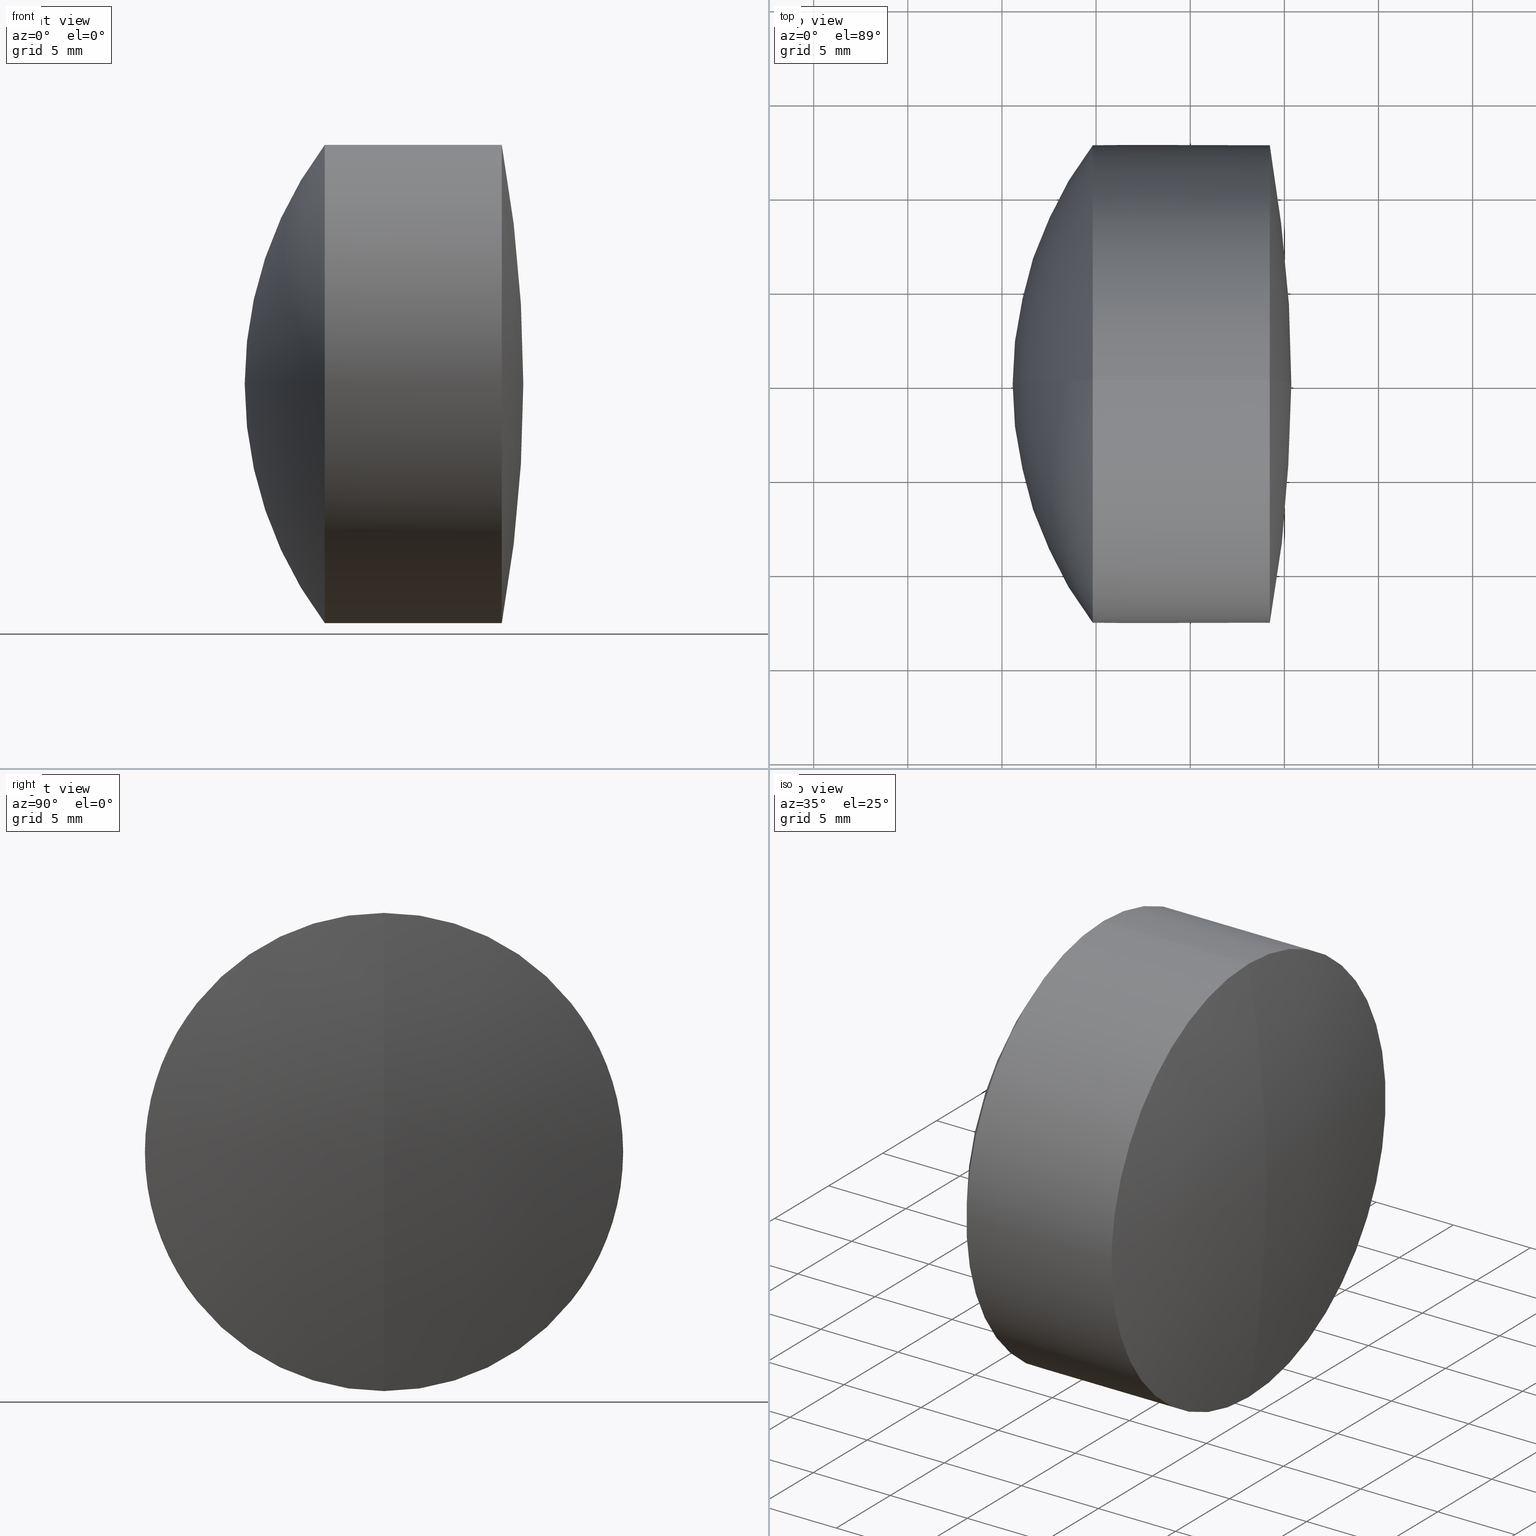
[diagram: canonical four-view strip — front | top / right | iso, engineering-drawing reading convention]
A machine part, canonical four-view strip (front | top / right | iso — engineering-drawing reading convention). The complete STEP part file that produces these views, byte-faithful:
ISO-10303-21;
HEADER;
FILE_DESCRIPTION (( 'STEP AP214' ),
    '1' );
FILE_NAME ('145158.STEP',
    '2019-06-07T03:03:15',
    ( 'user' ),
    ( '΢���й�' ),
    'SwSTEP 2.0',
    'SolidWorks 2016',
    '' );
FILE_SCHEMA (( 'AUTOMOTIVE_DESIGN' ));
ENDSEC;

DATA;
#1 = CARTESIAN_POINT ( 'NONE',  ( 16.75446555327505400, 1.555301434917138400E-015, -12.69999999999999900 ) ) ;
#2 = COLOUR_RGB ( '',1.000000000000000000, 1.000000000000000000, 1.000000000000000000 ) ;
#3 = CARTESIAN_POINT ( 'NONE',  ( -45.74976141422766300, 0.0000000000000000000, 0.0000000000000000000 ) ) ;
#4 = EDGE_CURVE ( 'NONE', #127, #321, #328, .T. ) ;
#5 = SURFACE_STYLE_USAGE ( .BOTH. , #31 ) ;
#6 = ADVANCED_FACE ( 'NONE', ( #305 ), #298, .F. ) ;
#7 = CIRCLE ( 'NONE', #189, 71.12000000000000500 ) ;
#8 = ORIENTED_EDGE ( 'NONE', *, *, #331, .T. ) ;
#9 = CARTESIAN_POINT ( 'NONE',  ( 16.75446555327505400, 0.0000000000000000000, 0.0000000000000000000 ) ) ;
#10 = DIRECTION ( 'NONE',  ( -1.000000000000000000, -0.0000000000000000000, -0.0000000000000000000 ) ) ;
#11 = ORIENTED_EDGE ( 'NONE', *, *, #61, .T. ) ;
#12 = DIRECTION ( 'NONE',  ( 0.0000000000000000000, 1.000000000000000000, -0.0000000000000000000 ) ) ;
#13 = DIRECTION ( 'NONE',  ( 0.0000000000000000000, 0.0000000000000000000, 1.000000000000000000 ) ) ;
#14 = CARTESIAN_POINT ( 'NONE',  ( 16.75446555327505400, 0.0000000000000000000, 12.69999999999999900 ) ) ;
#15 = ORIENTED_EDGE ( 'NONE', *, *, #346, .T. ) ;
#16 = PRODUCT_RELATED_PRODUCT_CATEGORY ( 'part', '', ( #334 ) ) ;
#17 = SURFACE_STYLE_USAGE ( .BOTH. , #262 ) ;
#18 = AXIS2_PLACEMENT_3D ( 'NONE', #69, #343, #165 ) ;
#19 = LINE ( 'NONE', #123, #310 ) ;
#20 = CARTESIAN_POINT ( 'NONE',  ( 8.330238585772336900, 0.0000000000000000000, 0.0000000000000000000 ) ) ;
#21 = CARTESIAN_POINT ( 'NONE',  ( 8.330238585772336900, 0.0000000000000000000, 0.0000000000000000000 ) ) ;
#22 = EDGE_LOOP ( 'NONE', ( #15, #11, #153, #252 ) ) ;
#23 = ORIENTED_EDGE ( 'NONE', *, *, #161, .T. ) ;
#24 = AXIS2_PLACEMENT_3D ( 'NONE', #146, #90, #228 ) ;
#25 = CARTESIAN_POINT ( 'NONE',  ( -0.5519199926577972300, 0.0000000000000000000, 0.0000000000000000000 ) ) ;
#26 = SPHERICAL_SURFACE ( 'NONE', #38, 15.24000000000000000 ) ;
#27 = DIRECTION ( 'NONE',  ( 0.0000000000000000000, -1.224646799147353200E-016, 1.000000000000000000 ) ) ;
#28 = EDGE_CURVE ( 'NONE', #142, #222, #7, .T. ) ;
#29 = EDGE_LOOP ( 'NONE', ( #129, #217, #58 ) ) ;
#30 = ADVANCED_FACE ( 'NONE', ( #172 ), #181, .T. ) ;
#31 = SURFACE_SIDE_STYLE ('',( #139 ) ) ;
#32 = FILL_AREA_STYLE_COLOUR ( '', #122 ) ;
#33 = EDGE_LOOP ( 'NONE', ( #171, #251, #112 ) ) ;
#34 = FACE_OUTER_BOUND ( 'NONE', #197, .T. ) ;
#35 = DIRECTION ( 'NONE',  ( -1.000000000000000000, -0.0000000000000000000, -0.0000000000000000000 ) ) ;
#36 = EDGE_CURVE ( 'NONE', #142, #306, #312, .T. ) ;
#37 = CARTESIAN_POINT ( 'NONE',  ( -45.74976141422766300, 0.0000000000000000000, 0.0000000000000000000 ) ) ;
#38 = AXIS2_PLACEMENT_3D ( 'NONE', #309, #93, #85 ) ;
#39 = DIRECTION ( 'NONE',  ( -1.000000000000000000, -0.0000000000000000000, -0.0000000000000000000 ) ) ;
#40 = CARTESIAN_POINT ( 'NONE',  ( 31.66023858577234100, 0.0000000000000000000, -4.336808766610423000E-016 ) ) ;
#41 = ORIENTED_EDGE ( 'NONE', *, *, #54, .F. ) ;
#42 = ORIENTED_EDGE ( 'NONE', *, *, #203, .F. ) ;
#43 = ORIENTED_EDGE ( 'NONE', *, *, #87, .T. ) ;
#44 = SPHERICAL_SURFACE ( 'NONE', #24, 71.12000000000000500 ) ;
#45 = CARTESIAN_POINT ( 'NONE',  ( 16.75446555327505400, 0.0000000000000000000, 0.0000000000000000000 ) ) ;
#46 = PRODUCT_DEFINITION_CONTEXT ( 'detailed design', #344, 'design' ) ;
#47 = DIRECTION ( 'NONE',  ( -0.0000000000000000000, 1.000000000000000000, 1.224646799147353200E-016 ) ) ;
#48 =( GEOMETRIC_REPRESENTATION_CONTEXT ( 3 ) GLOBAL_UNCERTAINTY_ASSIGNED_CONTEXT ( ( #221 ) ) GLOBAL_UNIT_ASSIGNED_CONTEXT ( ( #134, #114, #285 ) ) REPRESENTATION_CONTEXT ( 'NONE', 'WORKASPACE' ) );
#49 = DIRECTION ( 'NONE',  ( 0.0000000000000000000, 0.0000000000000000000, -1.000000000000000000 ) ) ;
#50 = CIRCLE ( 'NONE', #214, 12.69999999999999800 ) ;
#51 = DIRECTION ( 'NONE',  ( -1.000000000000000000, -0.0000000000000000000, -0.0000000000000000000 ) ) ;
#52 = DIRECTION ( 'NONE',  ( 0.0000000000000000000, 1.000000000000000000, 0.0000000000000000000 ) ) ;
#53 =( LENGTH_UNIT ( ) NAMED_UNIT ( * ) SI_UNIT ( .MILLI., .METRE. ) );
#54 = EDGE_CURVE ( 'NONE', #175, #178, #88, .T. ) ;
#55 = ORIENTED_EDGE ( 'NONE', *, *, #340, .T. ) ;
#56 = CIRCLE ( 'NONE', #213, 15.24000000000000000 ) ;
#57 = ORIENTED_EDGE ( 'NONE', *, *, #303, .F. ) ;
#58 = ORIENTED_EDGE ( 'NONE', *, *, #103, .F. ) ;
#59 = SPHERICAL_SURFACE ( 'NONE', #170, 21.09000000000000000 ) ;
#60 = CARTESIAN_POINT ( 'NONE',  ( 8.330238585772336900, 0.0000000000000000000, 0.0000000000000000000 ) ) ;
#61 = EDGE_CURVE ( 'NONE', #178, #293, #342, .T. ) ;
#62 = DIRECTION ( 'NONE',  ( 0.0000000000000000000, -1.000000000000000000, -1.224646799147353200E-016 ) ) ;
#63 = AXIS2_PLACEMENT_3D ( 'NONE', #37, #231, #141 ) ;
#64 = APPLICATION_CONTEXT ( 'automotive_design' ) ;
#65 = DIRECTION ( 'NONE',  ( -1.000000000000000000, -0.0000000000000000000, -0.0000000000000000000 ) ) ;
#66 = DIRECTION ( 'NONE',  ( 0.0000000000000000000, 0.0000000000000000000, 1.000000000000000000 ) ) ;
#67 = CIRCLE ( 'NONE', #116, 12.69999999999999900 ) ;
#68 =( NAMED_UNIT ( * ) PLANE_ANGLE_UNIT ( ) SI_UNIT ( $, .RADIAN. ) );
#69 = CARTESIAN_POINT ( 'NONE',  ( 8.330238585772336900, 0.0000000000000000000, 0.0000000000000000000 ) ) ;
#70 = MANIFOLD_SOLID_BREP ( '��ת1', #117 ) ;
#71 = ORIENTED_EDGE ( 'NONE', *, *, #180, .T. ) ;
#72 = SURFACE_STYLE_FILL_AREA ( #182 ) ;
#73 = DIRECTION ( 'NONE',  ( 0.0000000000000000000, -1.000000000000000000, 0.0000000000000000000 ) ) ;
#74 = CARTESIAN_POINT ( 'NONE',  ( -0.5519199926577972300, 0.0000000000000000000, 0.0000000000000000000 ) ) ;
#75 = AXIS2_PLACEMENT_3D ( 'NONE', #74, #184, #308 ) ;
#76 = VECTOR ( 'NONE', #51, 1000.000000000000000 ) ;
#77 = ORIENTED_EDGE ( 'NONE', *, *, #109, .F. ) ;
#78 = STYLED_ITEM ( 'NONE', ( #147 ), #263 ) ;
#79 = CARTESIAN_POINT ( 'NONE',  ( 25.37023858577233800, 0.0000000000000000000, -4.354844017767987900E-015 ) ) ;
#80 = CARTESIAN_POINT ( 'NONE',  ( 14.82283676720187200, 1.555301434917138400E-015, -12.69999999999999900 ) ) ;
#81 = CARTESIAN_POINT ( 'NONE',  ( 24.22712334066837100, 0.0000000000000000000, -12.69999999999997400 ) ) ;
#82 = EDGE_LOOP ( 'NONE', ( #77, #245, #216 ) ) ;
#83 = CIRCLE ( 'NONE', #260, 12.69999999999999900 ) ;
#84 = EDGE_LOOP ( 'NONE', ( #238, #99, #273 ) ) ;
#85 = DIRECTION ( 'NONE',  ( 0.0000000000000000000, 0.0000000000000000000, -1.000000000000000000 ) ) ;
#86 = CARTESIAN_POINT ( 'NONE',  ( 0.0000000000000000000, 0.0000000000000000000, 0.0000000000000000000 ) ) ;
#87 = EDGE_CURVE ( 'NONE', #306, #222, #50, .T. ) ;
#88 = CIRCLE ( 'NONE', #160, 15.24000000000000000 ) ;
#89 = ADVANCED_FACE ( 'NONE', ( #133 ), #255, .T. ) ;
#90 = DIRECTION ( 'NONE',  ( -0.0000000000000000000, -1.000000000000000000, -0.0000000000000000000 ) ) ;
#91 = FACE_OUTER_BOUND ( 'NONE', #205, .T. ) ;
#92 = EDGE_LOOP ( 'NONE', ( #41, #210, #279 ) ) ;
#93 = DIRECTION ( 'NONE',  ( -0.0000000000000000000, -1.000000000000000000, -0.0000000000000000000 ) ) ;
#94 = AXIS2_PLACEMENT_3D ( 'NONE', #20, #318, #193 ) ;
#95 = DIRECTION ( 'NONE',  ( 0.0000000000000000000, 0.0000000000000000000, 1.000000000000000000 ) ) ;
#96 = AXIS2_PLACEMENT_3D ( 'NONE', #229, #35, #200 ) ;
#97 = DIRECTION ( 'NONE',  ( 0.0000000000000000000, 0.0000000000000000000, -1.000000000000000000 ) ) ;
#98 =( LENGTH_UNIT ( ) NAMED_UNIT ( * ) SI_UNIT ( .MILLI., .METRE. ) );
#99 = ORIENTED_EDGE ( 'NONE', *, *, #4, .T. ) ;
#100 = VERTEX_POINT ( 'NONE', #179 ) ;
#101 = DIRECTION ( 'NONE',  ( -1.000000000000000000, -0.0000000000000000000, -0.0000000000000000000 ) ) ;
#102 = CIRCLE ( 'NONE', #96, 12.69999999999999900 ) ;
#103 = EDGE_CURVE ( 'NONE', #100, #280, #266, .T. ) ;
#104 = VERTEX_POINT ( 'NONE', #14 ) ;
#105 = EDGE_LOOP ( 'NONE', ( #302, #55, #23 ) ) ;
#106 = CARTESIAN_POINT ( 'NONE',  ( 24.22712334066836700, 0.0000000000000000000, 0.0000000000000000000 ) ) ;
#107 = SHAPE_DEFINITION_REPRESENTATION ( #242, #263 ) ;
#108 = DIRECTION ( 'NONE',  ( 0.0000000000000000000, 0.0000000000000000000, 1.000000000000000000 ) ) ;
#109 = EDGE_CURVE ( 'NONE', #293, #280, #118, .T. ) ;
#110 = AXIS2_PLACEMENT_3D ( 'NONE', #25, #274, #218 ) ;
#111 = COLOUR_RGB ( '',1.000000000000000000, 1.000000000000000000, 1.000000000000000000 ) ;
#112 = ORIENTED_EDGE ( 'NONE', *, *, #87, .F. ) ;
#113 = ADVANCED_FACE ( 'NONE', ( #194 ), #204, .T. ) ;
#114 =( NAMED_UNIT ( * ) PLANE_ANGLE_UNIT ( ) SI_UNIT ( $, .RADIAN. ) );
#115 = APPLICATION_PROTOCOL_DEFINITION ( 'draft international standard', 'automotive_design', 1998, #344 ) ;
#116 = AXIS2_PLACEMENT_3D ( 'NONE', #288, #10, #199 ) ;
#117 = CLOSED_SHELL ( 'NONE', ( #314, #30, #224, #113, #265, #89 ) ) ;
#118 = CIRCLE ( 'NONE', #282, 21.09000000000000000 ) ;
#119 =( NAMED_UNIT ( * ) PLANE_ANGLE_UNIT ( ) SI_UNIT ( $, .RADIAN. ) );
#120 = PRODUCT_CONTEXT ( 'NONE', #64, 'mechanical' ) ;
#121 = CARTESIAN_POINT ( 'NONE',  ( 31.66023858577234100, 0.0000000000000000000, -4.336808766610423000E-016 ) ) ;
#122 = COLOUR_RGB ( '',1.000000000000000000, 1.000000000000000000, 1.000000000000000000 ) ;
#123 = CARTESIAN_POINT ( 'NONE',  ( -0.8160621761658039000, 0.0000000000000000000, 12.69999999999999900 ) ) ;
#124 = EDGE_LOOP ( 'NONE', ( #271, #322, #166 ) ) ;
#125 = SURFACE_SIDE_STYLE ('',( #225 ) ) ;
#126 = CARTESIAN_POINT ( 'NONE',  ( -0.8160621761658039000, 1.555301434917138400E-015, -12.69999999999999900 ) ) ;
#127 = VERTEX_POINT ( 'NONE', #151 ) ;
#128 = CIRCLE ( 'NONE', #281, 12.69999999999999900 ) ;
#129 = ORIENTED_EDGE ( 'NONE', *, *, #240, .T. ) ;
#130 = EDGE_CURVE ( 'NONE', #175, #104, #287, .T. ) ;
#131 =( NAMED_UNIT ( * ) PLANE_ANGLE_UNIT ( ) SI_UNIT ( $, .RADIAN. ) );
#132 = PRESENTATION_LAYER_ASSIGNMENT (  '', '', ( #207 ) ) ;
#133 = FACE_OUTER_BOUND ( 'NONE', #92, .T. ) ;
#134 =( LENGTH_UNIT ( ) NAMED_UNIT ( * ) SI_UNIT ( .MILLI., .METRE. ) );
#135 = AXIS2_PLACEMENT_3D ( 'NONE', #86, #188, #248 ) ;
#136 = UNCERTAINTY_MEASURE_WITH_UNIT (LENGTH_MEASURE( 1.000000000000000100E-005 ), #98, 'distance_accuracy_value', 'NONE');
#137 = AXIS2_PLACEMENT_3D ( 'NONE', #21, #52, #338 ) ;
#138 = DIRECTION ( 'NONE',  ( -1.000000000000000000, -0.0000000000000000000, -0.0000000000000000000 ) ) ;
#139 = SURFACE_STYLE_FILL_AREA ( #223 ) ;
#140 = CARTESIAN_POINT ( 'NONE',  ( 23.57023858577233700, 0.0000000000000000000, 9.331808609502831000E-016 ) ) ;
#141 = DIRECTION ( 'NONE',  ( 0.0000000000000000000, 0.0000000000000000000, -1.000000000000000000 ) ) ;
#142 = VERTEX_POINT ( 'NONE', #79 ) ;
#143 = CIRCLE ( 'NONE', #227, 12.69999999999999800 ) ;
#144 = ADVANCED_FACE ( 'NONE', ( #211 ), #230, .T. ) ;
#145 = CYLINDRICAL_SURFACE ( 'NONE', #75, 12.69999999999999900 ) ;
#146 = CARTESIAN_POINT ( 'NONE',  ( -45.74976141422766300, 0.0000000000000000000, 0.0000000000000000000 ) ) ;
#147 = PRESENTATION_STYLE_ASSIGNMENT (( #5 ) ) ;
#148 = DIRECTION ( 'NONE',  ( 0.0000000000000000000, 0.0000000000000000000, 1.000000000000000000 ) ) ;
#149 = DIRECTION ( 'NONE',  ( 0.0000000000000000000, 0.0000000000000000000, 1.000000000000000000 ) ) ;
#150 = AXIS2_PLACEMENT_3D ( 'NONE', #276, #202, #169 ) ;
#151 = CARTESIAN_POINT ( 'NONE',  ( 23.57023858577233700, 0.0000000000000000000, -9.331808609502831000E-016 ) ) ;
#152 = MECHANICAL_DESIGN_GEOMETRIC_PRESENTATION_REPRESENTATION (  '', ( #78 ), #208 ) ;
#153 = ORIENTED_EDGE ( 'NONE', *, *, #240, .F. ) ;
#154 = UNCERTAINTY_MEASURE_WITH_UNIT (LENGTH_MEASURE( 1.000000000000000100E-005 ), #53, 'distance_accuracy_value', 'NONE');
#155 = MECHANICAL_DESIGN_GEOMETRIC_PRESENTATION_REPRESENTATION (  '', ( #207 ), #244 ) ;
#156 =( NAMED_UNIT ( * ) SI_UNIT ( $, .STERADIAN. ) SOLID_ANGLE_UNIT ( ) );
#157 = CARTESIAN_POINT ( 'NONE',  ( 8.330238585772336900, 0.0000000000000000000, 0.0000000000000000000 ) ) ;
#158 = ORIENTED_EDGE ( 'NONE', *, *, #259, .T. ) ;
#159 = CIRCLE ( 'NONE', #150, 12.69999999999999900 ) ;
#160 = AXIS2_PLACEMENT_3D ( 'NONE', #209, #47, #27 ) ;
#161 = EDGE_CURVE ( 'NONE', #226, #321, #83, .T. ) ;
#162 = CLOSED_SHELL ( 'NONE', ( #144, #335, #6, #253, #196, #283 ) ) ;
#163 = UNCERTAINTY_MEASURE_WITH_UNIT (LENGTH_MEASURE( 1.000000000000000100E-005 ), #289, 'distance_accuracy_value', 'NONE');
#164 = CARTESIAN_POINT ( 'NONE',  ( 10.57023858577233900, 0.0000000000000000000, 8.577091730398417100E-016 ) ) ;
#165 = DIRECTION ( 'NONE',  ( 0.0000000000000000000, 0.0000000000000000000, -1.000000000000000000 ) ) ;
#166 = ORIENTED_EDGE ( 'NONE', *, *, #346, .F. ) ;
#167 = EDGE_LOOP ( 'NONE', ( #286, #43, #158, #332 ) ) ;
#168 = FACE_OUTER_BOUND ( 'NONE', #105, .T. ) ;
#169 = DIRECTION ( 'NONE',  ( 0.0000000000000000000, 0.0000000000000000000, 1.000000000000000000 ) ) ;
#170 = AXIS2_PLACEMENT_3D ( 'NONE', #121, #341, #148 ) ;
#171 = ORIENTED_EDGE ( 'NONE', *, *, #36, .F. ) ;
#172 = FACE_OUTER_BOUND ( 'NONE', #22, .T. ) ;
#173 = EDGE_LOOP ( 'NONE', ( #8, #243, #57, #234 ) ) ;
#174 = DIRECTION ( 'NONE',  ( -1.000000000000000000, -0.0000000000000000000, -0.0000000000000000000 ) ) ;
#175 = VERTEX_POINT ( 'NONE', #140 ) ;
#176 = VECTOR ( 'NONE', #65, 1000.000000000000000 ) ;
#177 = AXIS2_PLACEMENT_3D ( 'NONE', #232, #301, #13 ) ;
#178 = VERTEX_POINT ( 'NONE', #1 ) ;
#179 = CARTESIAN_POINT ( 'NONE',  ( 14.82283676720187200, 0.0000000000000000000, 12.69999999999999900 ) ) ;
#180 = EDGE_CURVE ( 'NONE', #104, #100, #19, .T. ) ;
#181 = CYLINDRICAL_SURFACE ( 'NONE', #333, 12.69999999999999900 ) ;
#182 = FILL_AREA_STYLE ('',( #267 ) ) ;
#183 = DIRECTION ( 'NONE',  ( -1.000000000000000000, -0.0000000000000000000, -0.0000000000000000000 ) ) ;
#184 = DIRECTION ( 'NONE',  ( -1.000000000000000000, -0.0000000000000000000, -0.0000000000000000000 ) ) ;
#185 = ORIENTED_EDGE ( 'NONE', *, *, #61, .F. ) ;
#186 = SPHERICAL_SURFACE ( 'NONE', #137, 15.24000000000000000 ) ;
#187 = CARTESIAN_POINT ( 'NONE',  ( -0.8160621761658039000, 0.0000000000000000000, 0.0000000000000000000 ) ) ;
#188 = DIRECTION ( 'NONE',  ( 0.0000000000000000000, 0.0000000000000000000, 1.000000000000000000 ) ) ;
#189 = AXIS2_PLACEMENT_3D ( 'NONE', #3, #62, #297 ) ;
#190 = AXIS2_PLACEMENT_3D ( 'NONE', #257, #247, #219 ) ;
#191 = PRODUCT_DEFINITION_FORMATION_WITH_SPECIFIED_SOURCE ( '�κ�', '', #334, .NOT_KNOWN. ) ;
#192 = CARTESIAN_POINT ( 'NONE',  ( 16.75446555327505400, 0.0000000000000000000, 0.0000000000000000000 ) ) ;
#193 = DIRECTION ( 'NONE',  ( 0.0000000000000000000, 1.224646799147353200E-016, -1.000000000000000000 ) ) ;
#194 = FACE_OUTER_BOUND ( 'NONE', #82, .T. ) ;
#195 = AXIS2_PLACEMENT_3D ( 'NONE', #330, #73, #49 ) ;
#196 = ADVANCED_FACE ( 'NONE', ( #91 ), #239, .T. ) ;
#197 = EDGE_LOOP ( 'NONE', ( #185, #256, #71, #42 ) ) ;
#198 = FACE_OUTER_BOUND ( 'NONE', #124, .T. ) ;
#199 = DIRECTION ( 'NONE',  ( 0.0000000000000000000, 0.0000000000000000000, 1.000000000000000000 ) ) ;
#200 = DIRECTION ( 'NONE',  ( 0.0000000000000000000, 0.0000000000000000000, 1.000000000000000000 ) ) ;
#201 = CARTESIAN_POINT ( 'NONE',  ( 16.75446555327505400, -1.555301434917138400E-015, 12.69999999999999900 ) ) ;
#202 = DIRECTION ( 'NONE',  ( -1.000000000000000000, -0.0000000000000000000, -0.0000000000000000000 ) ) ;
#203 = EDGE_CURVE ( 'NONE', #293, #100, #159, .T. ) ;
#204 = SPHERICAL_SURFACE ( 'NONE', #177, 21.09000000000000000 ) ;
#205 = EDGE_LOOP ( 'NONE', ( #268, #313, #317 ) ) ;
#206 = DIRECTION ( 'NONE',  ( 0.0000000000000000000, -1.224646799147353200E-016, 1.000000000000000000 ) ) ;
#207 = STYLED_ITEM ( 'NONE', ( #299 ), #307 ) ;
#208 =( GEOMETRIC_REPRESENTATION_CONTEXT ( 3 ) GLOBAL_UNCERTAINTY_ASSIGNED_CONTEXT ( ( #154 ) ) GLOBAL_UNIT_ASSIGNED_CONTEXT ( ( #53, #131, #156 ) ) REPRESENTATION_CONTEXT ( 'NONE', 'WORKASPACE' ) );
#209 = CARTESIAN_POINT ( 'NONE',  ( 8.330238585772336900, 0.0000000000000000000, 0.0000000000000000000 ) ) ;
#210 = ORIENTED_EDGE ( 'NONE', *, *, #130, .T. ) ;
#211 = FACE_OUTER_BOUND ( 'NONE', #173, .T. ) ;
#212 = DIRECTION ( 'NONE',  ( -0.0000000000000000000, 1.000000000000000000, 1.224646799147353200E-016 ) ) ;
#213 = AXIS2_PLACEMENT_3D ( 'NONE', #60, #12, #254 ) ;
#214 = AXIS2_PLACEMENT_3D ( 'NONE', #106, #138, #95 ) ;
#215 = FACE_OUTER_BOUND ( 'NONE', #33, .T. ) ;
#216 = ORIENTED_EDGE ( 'NONE', *, *, #103, .T. ) ;
#217 = ORIENTED_EDGE ( 'NONE', *, *, #109, .T. ) ;
#218 = DIRECTION ( 'NONE',  ( 0.0000000000000000000, 0.0000000000000000000, 1.000000000000000000 ) ) ;
#219 = DIRECTION ( 'NONE',  ( 0.0000000000000000000, 0.0000000000000000000, 1.000000000000000000 ) ) ;
#220 = FILL_AREA_STYLE ('',( #300 ) ) ;
#221 = UNCERTAINTY_MEASURE_WITH_UNIT (LENGTH_MEASURE( 1.000000000000000100E-005 ), #134, 'distance_accuracy_value', 'NONE');
#222 = VERTEX_POINT ( 'NONE', #258 ) ;
#223 = FILL_AREA_STYLE ('',( #32 ) ) ;
#224 = ADVANCED_FACE ( 'NONE', ( #278 ), #59, .T. ) ;
#225 = SURFACE_STYLE_FILL_AREA ( #220 ) ;
#226 = VERTEX_POINT ( 'NONE', #249 ) ;
#227 = AXIS2_PLACEMENT_3D ( 'NONE', #291, #39, #327 ) ;
#228 = DIRECTION ( 'NONE',  ( 0.0000000000000000000, 0.0000000000000000000, -1.000000000000000000 ) ) ;
#229 = CARTESIAN_POINT ( 'NONE',  ( 14.82283676720187400, 0.0000000000000000000, 0.0000000000000000000 ) ) ;
#230 = CYLINDRICAL_SURFACE ( 'NONE', #110, 12.69999999999999900 ) ;
#231 = DIRECTION ( 'NONE',  ( -0.0000000000000000000, -1.000000000000000000, -0.0000000000000000000 ) ) ;
#232 = CARTESIAN_POINT ( 'NONE',  ( 31.66023858577234100, 0.0000000000000000000, -4.336808766610423000E-016 ) ) ;
#233 =( NAMED_UNIT ( * ) SI_UNIT ( $, .STERADIAN. ) SOLID_ANGLE_UNIT ( ) );
#234 = ORIENTED_EDGE ( 'NONE', *, *, #259, .F. ) ;
#235 = DIRECTION ( 'NONE',  ( 0.0000000000000000000, 0.0000000000000000000, 1.000000000000000000 ) ) ;
#236 = CARTESIAN_POINT ( 'NONE',  ( -0.5519199926577972300, 1.555301434917138400E-015, -12.69999999999999900 ) ) ;
#237 = DIRECTION ( 'NONE',  ( -1.000000000000000000, -0.0000000000000000000, -0.0000000000000000000 ) ) ;
#238 = ORIENTED_EDGE ( 'NONE', *, *, #340, .F. ) ;
#239 = SPHERICAL_SURFACE ( 'NONE', #63, 71.12000000000000500 ) ;
#240 = EDGE_CURVE ( 'NONE', #100, #293, #102, .T. ) ;
#241 = AXIS2_PLACEMENT_3D ( 'NONE', #264, #275, #235 ) ;
#242 = PRODUCT_DEFINITION_SHAPE ( 'NONE', 'NONE',  #284 ) ;
#243 = ORIENTED_EDGE ( 'NONE', *, *, #277, .T. ) ;
#244 =( GEOMETRIC_REPRESENTATION_CONTEXT ( 3 ) GLOBAL_UNCERTAINTY_ASSIGNED_CONTEXT ( ( #163 ) ) GLOBAL_UNIT_ASSIGNED_CONTEXT ( ( #289, #119, #315 ) ) REPRESENTATION_CONTEXT ( 'NONE', 'WORKASPACE' ) );
#245 = ORIENTED_EDGE ( 'NONE', *, *, #203, .T. ) ;
#246 = LINE ( 'NONE', #339, #176 ) ;
#247 = DIRECTION ( 'NONE',  ( -1.000000000000000000, -0.0000000000000000000, -0.0000000000000000000 ) ) ;
#248 = DIRECTION ( 'NONE',  ( 1.000000000000000000, 0.0000000000000000000, 0.0000000000000000000 ) ) ;
#249 = CARTESIAN_POINT ( 'NONE',  ( 16.75446555327505400, 0.0000000000000000000, -12.69999999999999900 ) ) ;
#250 = PRESENTATION_LAYER_ASSIGNMENT (  '', '', ( #304 ) ) ;
#251 = ORIENTED_EDGE ( 'NONE', *, *, #28, .T. ) ;
#252 = ORIENTED_EDGE ( 'NONE', *, *, #180, .F. ) ;
#253 = ADVANCED_FACE ( 'NONE', ( #168 ), #26, .F. ) ;
#254 = DIRECTION ( 'NONE',  ( 0.0000000000000000000, 0.0000000000000000000, 1.000000000000000000 ) ) ;
#255 = SPHERICAL_SURFACE ( 'NONE', #261, 15.24000000000000000 ) ;
#256 = ORIENTED_EDGE ( 'NONE', *, *, #319, .T. ) ;
#257 = CARTESIAN_POINT ( 'NONE',  ( -0.8160621761658039000, 0.0000000000000000000, 0.0000000000000000000 ) ) ;
#258 = CARTESIAN_POINT ( 'NONE',  ( 24.22712334066837100, -1.555301434917135700E-015, 12.69999999999997400 ) ) ;
#259 = EDGE_CURVE ( 'NONE', #222, #321, #246, .T. ) ;
#260 = AXIS2_PLACEMENT_3D ( 'NONE', #192, #294, #66 ) ;
#261 = AXIS2_PLACEMENT_3D ( 'NONE', #157, #325, #149 ) ;
#262 = SURFACE_SIDE_STYLE ('',( #72 ) ) ;
#263 = ADVANCED_BREP_SHAPE_REPRESENTATION ( '145158', ( #70, #307, #135 ), #48 ) ;
#264 = CARTESIAN_POINT ( 'NONE',  ( -45.74976141422766300, 0.0000000000000000000, 0.0000000000000000000 ) ) ;
#265 = ADVANCED_FACE ( 'NONE', ( #34 ), #329, .T. ) ;
#266 = CIRCLE ( 'NONE', #347, 21.09000000000000000 ) ;
#267 = FILL_AREA_STYLE_COLOUR ( '', #2 ) ;
#268 = ORIENTED_EDGE ( 'NONE', *, *, #28, .F. ) ;
#269 = PRESENTATION_LAYER_ASSIGNMENT (  '', '', ( #78 ) ) ;
#270 = MECHANICAL_DESIGN_GEOMETRIC_PRESENTATION_REPRESENTATION (  '', ( #304 ), #323 ) ;
#271 = ORIENTED_EDGE ( 'NONE', *, *, #130, .F. ) ;
#272 = CIRCLE ( 'NONE', #290, 12.69999999999999900 ) ;
#273 = ORIENTED_EDGE ( 'NONE', *, *, #303, .T. ) ;
#274 = DIRECTION ( 'NONE',  ( -1.000000000000000000, -0.0000000000000000000, -0.0000000000000000000 ) ) ;
#275 = DIRECTION ( 'NONE',  ( 0.0000000000000000000, 1.000000000000000000, -0.0000000000000000000 ) ) ;
#276 = CARTESIAN_POINT ( 'NONE',  ( 14.82283676720187400, 0.0000000000000000000, 0.0000000000000000000 ) ) ;
#277 = EDGE_CURVE ( 'NONE', #306, #226, #316, .T. ) ;
#278 = FACE_OUTER_BOUND ( 'NONE', #29, .T. ) ;
#279 = ORIENTED_EDGE ( 'NONE', *, *, #319, .F. ) ;
#280 = VERTEX_POINT ( 'NONE', #164 ) ;
#281 = AXIS2_PLACEMENT_3D ( 'NONE', #45, #237, #108 ) ;
#282 = AXIS2_PLACEMENT_3D ( 'NONE', #40, #212, #206 ) ;
#283 = ADVANCED_FACE ( 'NONE', ( #337 ), #145, .T. ) ;
#284 = PRODUCT_DEFINITION ( 'δ֪', '', #191, #46 ) ;
#285 =( NAMED_UNIT ( * ) SI_UNIT ( $, .STERADIAN. ) SOLID_ANGLE_UNIT ( ) );
#286 = ORIENTED_EDGE ( 'NONE', *, *, #277, .F. ) ;
#287 = CIRCLE ( 'NONE', #195, 15.24000000000000000 ) ;
#288 = CARTESIAN_POINT ( 'NONE',  ( 16.75446555327505400, 0.0000000000000000000, 0.0000000000000000000 ) ) ;
#289 =( LENGTH_UNIT ( ) NAMED_UNIT ( * ) SI_UNIT ( .MILLI., .METRE. ) );
#290 = AXIS2_PLACEMENT_3D ( 'NONE', #9, #174, #336 ) ;
#291 = CARTESIAN_POINT ( 'NONE',  ( 24.22712334066836700, 0.0000000000000000000, 0.0000000000000000000 ) ) ;
#292 = DIRECTION ( 'NONE',  ( -1.000000000000000000, -0.0000000000000000000, -0.0000000000000000000 ) ) ;
#293 = VERTEX_POINT ( 'NONE', #80 ) ;
#294 = DIRECTION ( 'NONE',  ( -1.000000000000000000, -0.0000000000000000000, -0.0000000000000000000 ) ) ;
#295 = DIRECTION ( 'NONE',  ( 0.0000000000000000000, -1.000000000000000000, 0.0000000000000000000 ) ) ;
#296 = SURFACE_STYLE_USAGE ( .BOTH. , #125 ) ;
#297 = DIRECTION ( 'NONE',  ( 0.0000000000000000000, 1.224646799147353200E-016, -1.000000000000000000 ) ) ;
#298 = SPHERICAL_SURFACE ( 'NONE', #18, 15.24000000000000000 ) ;
#299 = PRESENTATION_STYLE_ASSIGNMENT (( #17 ) ) ;
#300 = FILL_AREA_STYLE_COLOUR ( '', #111 ) ;
#301 = DIRECTION ( 'NONE',  ( 0.0000000000000000000, 1.000000000000000000, 0.0000000000000000000 ) ) ;
#302 = ORIENTED_EDGE ( 'NONE', *, *, #4, .F. ) ;
#303 = EDGE_CURVE ( 'NONE', #321, #226, #128, .T. ) ;
#304 = STYLED_ITEM ( 'NONE', ( #345 ), #70 ) ;
#305 = FACE_OUTER_BOUND ( 'NONE', #84, .T. ) ;
#306 = VERTEX_POINT ( 'NONE', #81 ) ;
#307 = MANIFOLD_SOLID_BREP ( '��ת2', #162 ) ;
#308 = DIRECTION ( 'NONE',  ( 0.0000000000000000000, 0.0000000000000000000, 1.000000000000000000 ) ) ;
#309 = CARTESIAN_POINT ( 'NONE',  ( 8.330238585772336900, 0.0000000000000000000, 0.0000000000000000000 ) ) ;
#310 = VECTOR ( 'NONE', #292, 1000.000000000000000 ) ;
#311 = APPLICATION_PROTOCOL_DEFINITION ( 'draft international standard', 'automotive_design', 1998, #64 ) ;
#312 = CIRCLE ( 'NONE', #241, 71.12000000000000500 ) ;
#313 = ORIENTED_EDGE ( 'NONE', *, *, #36, .T. ) ;
#314 = ADVANCED_FACE ( 'NONE', ( #198 ), #186, .T. ) ;
#315 =( NAMED_UNIT ( * ) SI_UNIT ( $, .STERADIAN. ) SOLID_ANGLE_UNIT ( ) );
#316 = LINE ( 'NONE', #236, #326 ) ;
#317 = ORIENTED_EDGE ( 'NONE', *, *, #331, .F. ) ;
#318 = DIRECTION ( 'NONE',  ( 0.0000000000000000000, -1.000000000000000000, -1.224646799147353200E-016 ) ) ;
#319 = EDGE_CURVE ( 'NONE', #178, #104, #67, .T. ) ;
#320 = CARTESIAN_POINT ( 'NONE',  ( 31.66023858577234100, 0.0000000000000000000, -4.336808766610423000E-016 ) ) ;
#321 = VERTEX_POINT ( 'NONE', #201 ) ;
#322 = ORIENTED_EDGE ( 'NONE', *, *, #54, .T. ) ;
#323 =( GEOMETRIC_REPRESENTATION_CONTEXT ( 3 ) GLOBAL_UNCERTAINTY_ASSIGNED_CONTEXT ( ( #136 ) ) GLOBAL_UNIT_ASSIGNED_CONTEXT ( ( #98, #68, #233 ) ) REPRESENTATION_CONTEXT ( 'NONE', 'WORKASPACE' ) );
#324 = DIRECTION ( 'NONE',  ( 0.0000000000000000000, 0.0000000000000000000, 1.000000000000000000 ) ) ;
#325 = DIRECTION ( 'NONE',  ( 0.0000000000000000000, 1.000000000000000000, 0.0000000000000000000 ) ) ;
#326 = VECTOR ( 'NONE', #101, 1000.000000000000000 ) ;
#327 = DIRECTION ( 'NONE',  ( 0.0000000000000000000, 0.0000000000000000000, 1.000000000000000000 ) ) ;
#328 = CIRCLE ( 'NONE', #94, 15.24000000000000000 ) ;
#329 = CYLINDRICAL_SURFACE ( 'NONE', #190, 12.69999999999999900 ) ;
#330 = CARTESIAN_POINT ( 'NONE',  ( 8.330238585772336900, 0.0000000000000000000, 0.0000000000000000000 ) ) ;
#331 = EDGE_CURVE ( 'NONE', #222, #306, #143, .T. ) ;
#332 = ORIENTED_EDGE ( 'NONE', *, *, #161, .F. ) ;
#333 = AXIS2_PLACEMENT_3D ( 'NONE', #187, #183, #324 ) ;
#334 = PRODUCT ( '145158', '145158', '', ( #120 ) ) ;
#335 = ADVANCED_FACE ( 'NONE', ( #215 ), #44, .T. ) ;
#336 = DIRECTION ( 'NONE',  ( 0.0000000000000000000, 0.0000000000000000000, 1.000000000000000000 ) ) ;
#337 = FACE_OUTER_BOUND ( 'NONE', #167, .T. ) ;
#338 = DIRECTION ( 'NONE',  ( 0.0000000000000000000, 0.0000000000000000000, 1.000000000000000000 ) ) ;
#339 = CARTESIAN_POINT ( 'NONE',  ( -0.5519199926577972300, 0.0000000000000000000, 12.69999999999999900 ) ) ;
#340 = EDGE_CURVE ( 'NONE', #127, #226, #56, .T. ) ;
#341 = DIRECTION ( 'NONE',  ( 0.0000000000000000000, 1.000000000000000000, 0.0000000000000000000 ) ) ;
#342 = LINE ( 'NONE', #126, #76 ) ;
#343 = DIRECTION ( 'NONE',  ( -0.0000000000000000000, -1.000000000000000000, -0.0000000000000000000 ) ) ;
#344 = APPLICATION_CONTEXT ( 'automotive_design' ) ;
#345 = PRESENTATION_STYLE_ASSIGNMENT (( #296 ) ) ;
#346 = EDGE_CURVE ( 'NONE', #104, #178, #272, .T. ) ;
#347 = AXIS2_PLACEMENT_3D ( 'NONE', #320, #295, #97 ) ;
ENDSEC;
END-ISO-10303-21;
